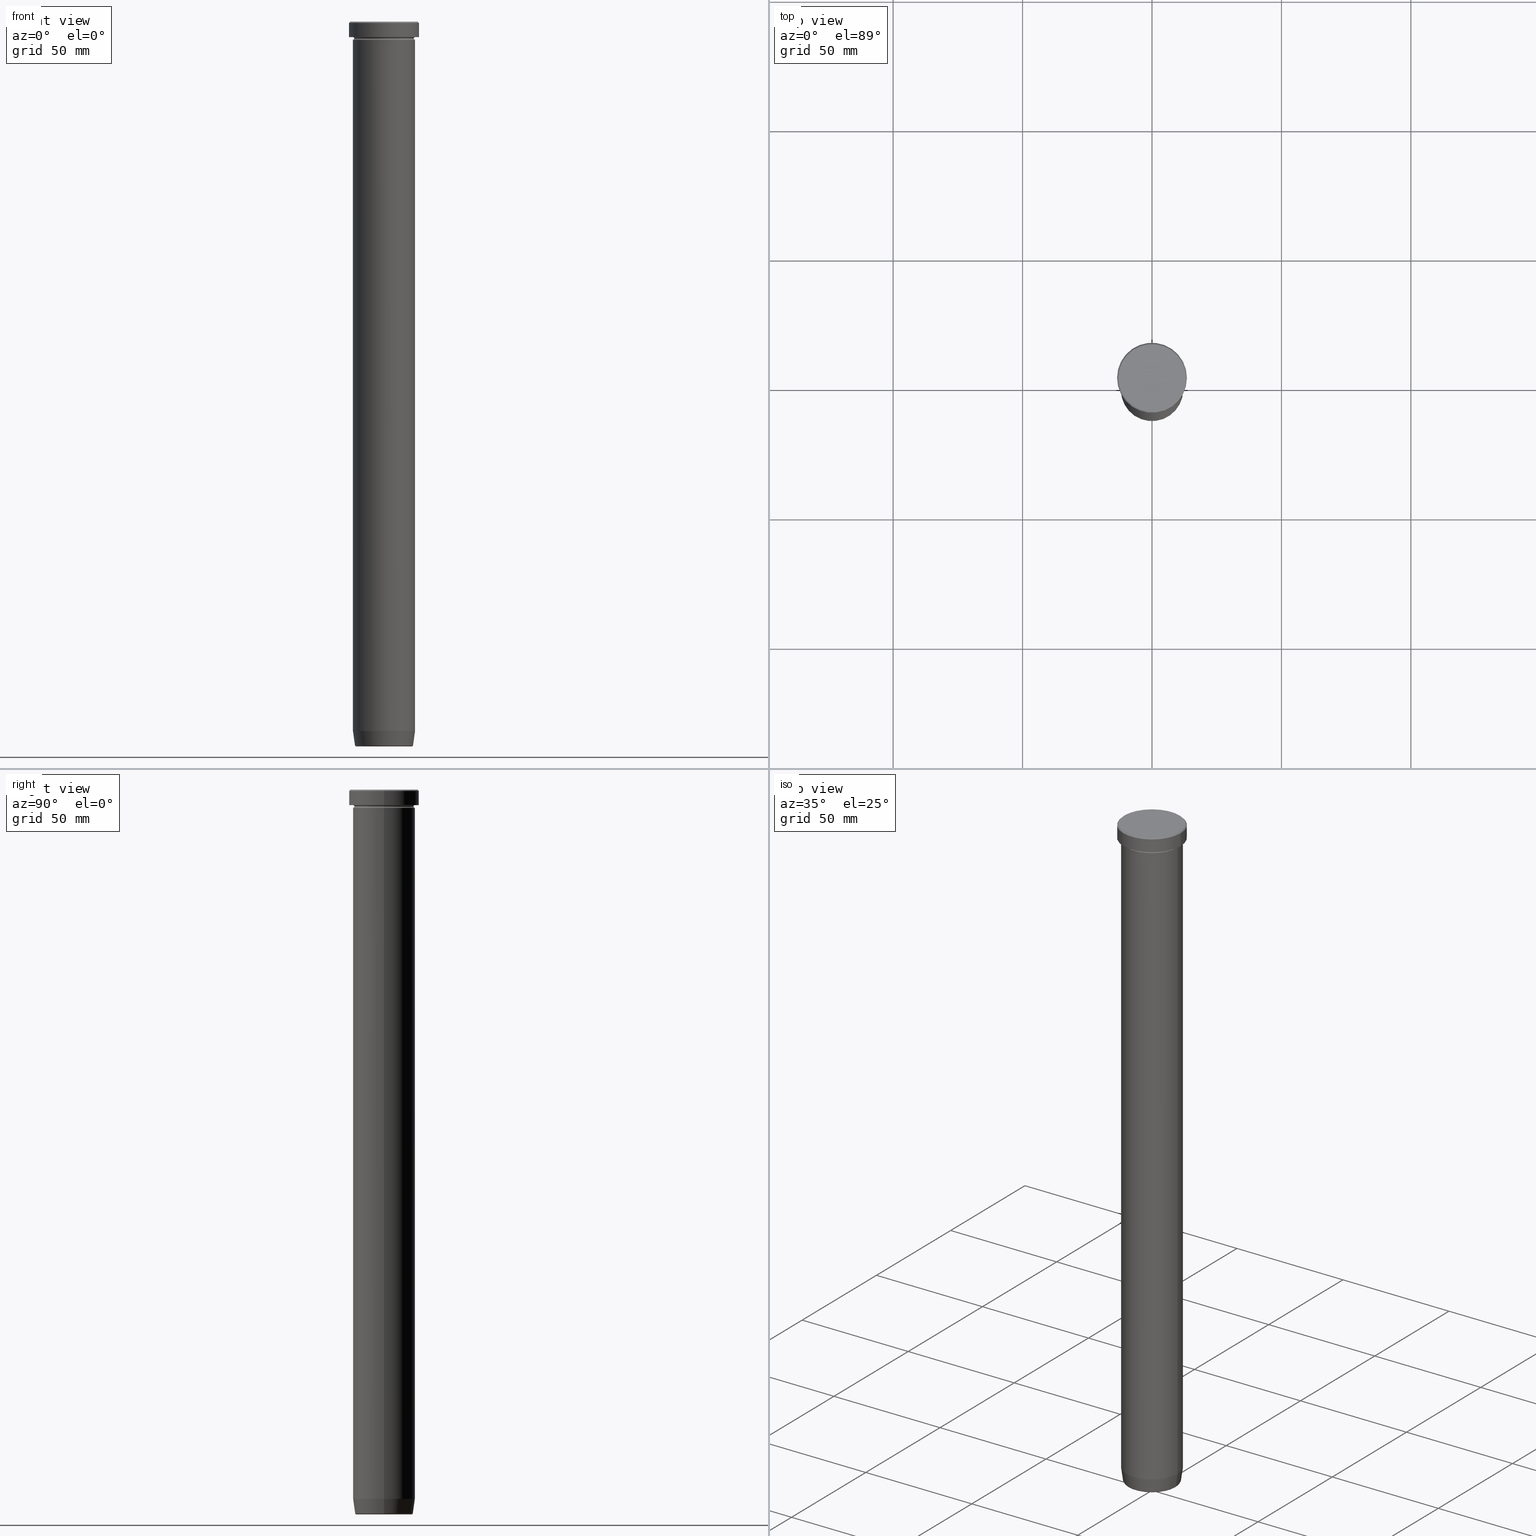
[diagram: canonical four-view strip — front | top / right | iso, engineering-drawing reading convention]
A machine part, canonical four-view strip (front | top / right | iso — engineering-drawing reading convention). The complete STEP part file that produces these views, byte-faithful:
ISO-10303-21;
HEADER;
FILE_DESCRIPTION (( 'STEP AP203' ),
    '1' );
FILE_NAME ('9771.STEP',
    '2024-01-02T17:51:23',
    ( '' ),
    ( '' ),
    'SwSTEP 2.0',
    'SolidWorks 2019',
    '' );
FILE_SCHEMA (( 'CONFIG_CONTROL_DESIGN' ));
ENDSEC;

DATA;
#1 = DIRECTION ( 'NONE',  ( -0.000000000000000000, -0.000000000000000000, 1.000000000000000000 ) ) ;
#2 = CIRCLE ( 'NONE', #321, 12.00000000000000000 ) ;
#3 = DIRECTION ( 'NONE',  ( -0.000000000000000000, -0.000000000000000000, 1.000000000000000000 ) ) ;
#4 = AXIS2_PLACEMENT_3D ( 'NONE', #432, #14, #202 ) ;
#5 = EDGE_CURVE ( 'NONE', #509, #226, #549, .T. ) ;
#6 = EDGE_LOOP ( 'NONE', ( #351, #67, #415, #108 ) ) ;
#7 = ORIENTED_EDGE ( 'NONE', *, *, #90, .T. ) ;
#8 = LINE ( 'NONE', #242, #583 ) ;
#9 = EDGE_LOOP ( 'NONE', ( #492, #214, #599, #481 ) ) ;
#10 = CARTESIAN_POINT ( 'NONE',  ( 0.000000000000000000, 0.000000000000000000, -280.0000000000000000 ) ) ;
#11 = EDGE_CURVE ( 'NONE', #151, #425, #116, .T. ) ;
#12 = ORIENTED_EDGE ( 'NONE', *, *, #198, .T. ) ;
#13 = EDGE_LOOP ( 'NONE', ( #93, #196, #491, #104 ) ) ;
#14 = DIRECTION ( 'NONE',  ( -0.000000000000000000, -0.000000000000000000, 1.000000000000000000 ) ) ;
#15 = VECTOR ( 'NONE', #396, 1000.000000000000000 ) ;
#16 = CONICAL_SURFACE ( 'NONE', #70, 12.99999999999999645, 0.7853981633974431720 ) ;
#17 = LINE ( 'NONE', #204, #136 ) ;
#18 = FACE_OUTER_BOUND ( 'NONE', #264, .T. ) ;
#19 = APPROVAL_ROLE ( '' ) ;
#20 = CARTESIAN_POINT ( 'NONE',  ( 10.72211162287753083, 0.000000000000000000, -279.5000000000000000 ) ) ;
#21 = TOROIDAL_SURFACE ( 'NONE', #364, 12.00000000000000000, 0.5000000000000000000 ) ;
#22 = ORIENTED_EDGE ( 'NONE', *, *, #274, .F. ) ;
#23 = EDGE_LOOP ( 'NONE', ( #446, #303 ) ) ;
#24 = CARTESIAN_POINT ( 'NONE',  ( 12.00000000000000000, 0.000000000000000000, 0.000000000000000000 ) ) ;
#25 = EDGE_LOOP ( 'NONE', ( #547, #443, #522, #500 ) ) ;
#26 = EDGE_LOOP ( 'NONE', ( #427, #419, #137, #22 ) ) ;
#27 = ADVANCED_FACE ( 'NONE', ( #428 ), #515, .T. ) ;
#28 = COORDINATED_UNIVERSAL_TIME_OFFSET ( 1, 0, .AHEAD. ) ;
#29 = EDGE_LOOP ( 'NONE', ( #346, #571, #7, #289 ) ) ;
#30 = CIRCLE ( 'NONE', #356, 0.5000000000000004441 ) ;
#31 = VECTOR ( 'NONE', #158, 1000.000000000000000 ) ;
#32 = APPROVAL ( #256, 'NEUR�EN�' ) ;
#33 = DIRECTION ( 'NONE',  ( -0.000000000000000000, -0.000000000000000000, 1.000000000000000000 ) ) ;
#34 = DIRECTION ( 'NONE',  ( -1.000000000000000000, 1.224646799147353454E-16, 0.000000000000000000 ) ) ;
#35 = CARTESIAN_POINT ( 'NONE',  ( 0.000000000000000000, 13.50000000000000000, -6.000000000000000000 ) ) ;
#36 = PLANE ( 'NONE',  #394 ) ;
#37 = CARTESIAN_POINT ( 'NONE',  ( -10.72211162287753083, 1.313079967905760108E-15, -279.5000000000000000 ) ) ;
#38 = AXIS2_PLACEMENT_3D ( 'NONE', #43, #132, #84 ) ;
#39 = DIRECTION ( 'NONE',  ( 0.000000000000000000, 0.000000000000000000, -1.000000000000000000 ) ) ;
#40 = CARTESIAN_POINT ( 'NONE',  ( 12.00000000000000000, 0.000000000000000000, -6.500000000000000888 ) ) ;
#41 = ORIENTED_EDGE ( 'NONE', *, *, #164, .T. ) ;
#42 = FACE_BOUND ( 'NONE', #474, .T. ) ;
#43 = CARTESIAN_POINT ( 'NONE',  ( 0.000000000000000000, 0.000000000000000000, 0.000000000000000000 ) ) ;
#44 = ADVANCED_FACE ( 'NONE', ( #472 ), #181, .F. ) ;
#45 = DIRECTION ( 'NONE',  ( -0.000000000000000000, -0.000000000000000000, 1.000000000000000000 ) ) ;
#46 = ORIENTED_EDGE ( 'NONE', *, *, #461, .T. ) ;
#47 = CC_DESIGN_PERSON_AND_ORGANIZATION_ASSIGNMENT ( #398, #450, ( #78 ) ) ;
#48 = AXIS2_PLACEMENT_3D ( 'NONE', #458, #368, #558 ) ;
#49 = ORIENTED_EDGE ( 'NONE', *, *, #585, .F. ) ;
#50 = DIRECTION ( 'NONE',  ( 0.000000000000000000, 0.000000000000000000, -1.000000000000000000 ) ) ;
#51 = CC_DESIGN_SECURITY_CLASSIFICATION ( #78, ( #129 ) ) ;
#52 = ORIENTED_EDGE ( 'NONE', *, *, #11, .F. ) ;
#53 = DIRECTION ( 'NONE',  ( -0.000000000000000000, -0.000000000000000000, 1.000000000000000000 ) ) ;
#54 = CARTESIAN_POINT ( 'NONE',  ( 0.000000000000000000, 0.000000000000000000, -27.00000000000000000 ) ) ;
#55 = EDGE_CURVE ( 'NONE', #379, #306, #336, .T. ) ;
#56 = ORIENTED_EDGE ( 'NONE', *, *, #11, .T. ) ;
#57 = DIRECTION ( 'NONE',  ( -0.000000000000000000, -0.000000000000000000, 1.000000000000000000 ) ) ;
#58 = DIRECTION ( 'NONE',  ( 0.7071067811865439090, 8.659560562354888485E-17, -0.7071067811865512365 ) ) ;
#59 = CARTESIAN_POINT ( 'NONE',  ( -12.00000000000000000, 1.469576158976823947E-15, 0.000000000000000000 ) ) ;
#60 = AXIS2_PLACEMENT_3D ( 'NONE', #360, #407, #271 ) ;
#61 = CARTESIAN_POINT ( 'NONE',  ( 13.50000000000000000, 0.000000000000000000, 0.000000000000000000 ) ) ;
#62 = CONICAL_SURFACE ( 'NONE', #118, 11.15675499178564678, 0.1396263401595471132 ) ;
#63 = APPROVAL_ROLE ( '' ) ;
#64 = VERTEX_POINT ( 'NONE', #568 ) ;
#65 = VERTEX_POINT ( 'NONE', #190 ) ;
#66 = EDGE_CURVE ( 'NONE', #124, #71, #278, .T. ) ;
#67 = ORIENTED_EDGE ( 'NONE', *, *, #392, .T. ) ;
#68 = DIRECTION ( 'NONE',  ( -0.000000000000000000, -0.000000000000000000, 1.000000000000000000 ) ) ;
#69 = AXIS2_PLACEMENT_3D ( 'NONE', #405, #177, #361 ) ;
#70 = AXIS2_PLACEMENT_3D ( 'NONE', #429, #563, #334 ) ;
#71 = VERTEX_POINT ( 'NONE', #556 ) ;
#72 = ADVANCED_FACE ( 'NONE', ( #193 ), #87, .F. ) ;
#73 = SECURITY_CLASSIFICATION_LEVEL ( 'unclassified' ) ;
#74 = ORIENTED_EDGE ( 'NONE', *, *, #134, .T. ) ;
#75 = CARTESIAN_POINT ( 'NONE',  ( 13.50000000000000000, 0.000000000000000000, -0.5000000000000091038 ) ) ;
#76 = CIRCLE ( 'NONE', #422, 12.00000000000000000 ) ;
#77 = ORIENTED_EDGE ( 'NONE', *, *, #357, .T. ) ;
#78 = SECURITY_CLASSIFICATION ( '', '', #73 ) ;
#79 = CARTESIAN_POINT ( 'NONE',  ( -12.99999999999999645, 0.000000000000000000, 0.000000000000000000 ) ) ;
#80 = DIRECTION ( 'NONE',  ( -1.000000000000000000, 1.224646799147353454E-16, 0.000000000000000000 ) ) ;
#81 = EDGE_CURVE ( 'NONE', #110, #305, #182, .T. ) ;
#82 = CARTESIAN_POINT ( 'NONE',  ( 0.000000000000000000, 0.000000000000000000, -0.5000000000000091038 ) ) ;
#83 = DIRECTION ( 'NONE',  ( 1.000000000000000000, 0.000000000000000000, 0.000000000000000000 ) ) ;
#84 = DIRECTION ( 'NONE',  ( 1.000000000000000000, 0.000000000000000000, 0.000000000000000000 ) ) ;
#85 = FACE_OUTER_BOUND ( 'NONE', #293, .T. ) ;
#86 = CC_DESIGN_PERSON_AND_ORGANIZATION_ASSIGNMENT ( #212, #577, ( #406 ) ) ;
#87 = TOROIDAL_SURFACE ( 'NONE', #434, 12.00000000000000000, 0.5000000000000000000 ) ;
#88 = AXIS2_PLACEMENT_3D ( 'NONE', #185, #554, #453 ) ;
#89 = FACE_OUTER_BOUND ( 'NONE', #277, .T. ) ;
#90 = EDGE_CURVE ( 'NONE', #124, #379, #521, .T. ) ;
#91 = ORIENTED_EDGE ( 'NONE', *, *, #546, .T. ) ;
#92 = PLANE ( 'NONE',  #280 ) ;
#93 = ORIENTED_EDGE ( 'NONE', *, *, #66, .T. ) ;
#94 = DIRECTION ( 'NONE',  ( -1.000000000000000000, 0.000000000000000000, -0.000000000000000000 ) ) ;
#95 = ORIENTED_EDGE ( 'NONE', *, *, #523, .T. ) ;
#96 = AXIS2_PLACEMENT_3D ( 'NONE', #246, #244, #465 ) ;
#97 = ORIENTED_EDGE ( 'NONE', *, *, #260, .T. ) ;
#98 = AXIS2_PLACEMENT_3D ( 'NONE', #497, #174, #122 ) ;
#99 = DIRECTION ( 'NONE',  ( 1.000000000000000000, 0.000000000000000000, 0.000000000000000000 ) ) ;
#100 = DIRECTION ( 'NONE',  ( -0.000000000000000000, -0.000000000000000000, 1.000000000000000000 ) ) ;
#101 = FACE_OUTER_BOUND ( 'NONE', #25, .T. ) ;
#102 = ADVANCED_FACE ( 'NONE', ( #258 ), #170, .T. ) ;
#103 = DIRECTION ( 'NONE',  ( -1.000000000000000000, 0.000000000000000000, -0.000000000000000000 ) ) ;
#104 = ORIENTED_EDGE ( 'NONE', *, *, #90, .F. ) ;
#105 = DATE_AND_TIME ( #584, #566 ) ;
#106 = TOROIDAL_SURFACE ( 'NONE', #452, 12.00000000000000000, 0.5000000000000000000 ) ;
#107 = EDGE_CURVE ( 'NONE', #471, #266, #401, .T. ) ;
#108 = ORIENTED_EDGE ( 'NONE', *, *, #5, .F. ) ;
#109 = ORIENTED_EDGE ( 'NONE', *, *, #222, .F. ) ;
#110 = VERTEX_POINT ( 'NONE', #313 ) ;
#111 = COORDINATED_UNIVERSAL_TIME_OFFSET ( 1, 0, .AHEAD. ) ;
#112 = CARTESIAN_POINT ( 'NONE',  ( -12.00000000000000000, 0.000000000000000000, -6.000000000000000000 ) ) ;
#113 = ORIENTED_EDGE ( 'NONE', *, *, #217, .T. ) ;
#114 = APPROVAL_DATE_TIME ( #353, #318 ) ;
#115 = EDGE_CURVE ( 'NONE', #471, #253, #373, .T. ) ;
#116 = CIRCLE ( 'NONE', #96, 12.00000000000000000 ) ;
#117 = AXIS2_PLACEMENT_3D ( 'NONE', #463, #587, #140 ) ;
#118 = AXIS2_PLACEMENT_3D ( 'NONE', #10, #514, #335 ) ;
#119 = COORDINATED_UNIVERSAL_TIME_OFFSET ( 1, 0, .AHEAD. ) ;
#120 = ORIENTED_EDGE ( 'NONE', *, *, #366, .F. ) ;
#121 = ORIENTED_EDGE ( 'NONE', *, *, #523, .F. ) ;
#122 = DIRECTION ( 'NONE',  ( -1.000000000000000000, -1.224646799147353454E-16, 0.000000000000000000 ) ) ;
#123 = DIRECTION ( 'NONE',  ( -0.000000000000000000, -0.000000000000000000, 1.000000000000000000 ) ) ;
#124 = VERTEX_POINT ( 'NONE', #488 ) ;
#125 = DIRECTION ( 'NONE',  ( 0.000000000000000000, 0.000000000000000000, -1.000000000000000000 ) ) ;
#126 = CLOSED_SHELL ( 'NONE', ( #102, #545, #372, #502, #248, #494, #397, #27 ) ) ;
#127 = CARTESIAN_POINT ( 'NONE',  ( 11.50000000000000000, 0.000000000000000000, -6.500000000000000888 ) ) ;
#128 = CIRCLE ( 'NONE', #88, 10.72211162287753083 ) ;
#129 = PRODUCT_DEFINITION_FORMATION_WITH_SPECIFIED_SOURCE ( 'LIBOVOLN�', '', #406, .NOT_KNOWN. ) ;
#130 = DIRECTION ( 'NONE',  ( 1.224646799147353207E-16, 1.000000000000000000, 0.000000000000000000 ) ) ;
#131 = CARTESIAN_POINT ( 'NONE',  ( 12.00000000000000000, 0.000000000000000000, -7.000000000000000000 ) ) ;
#132 = DIRECTION ( 'NONE',  ( -0.000000000000000000, -0.000000000000000000, 1.000000000000000000 ) ) ;
#133 = DIRECTION ( 'NONE',  ( -1.000000000000000000, 0.000000000000000000, 0.000000000000000000 ) ) ;
#134 = EDGE_CURVE ( 'NONE', #64, #146, #220, .T. ) ;
#135 = CARTESIAN_POINT ( 'NONE',  ( 0.000000000000000000, 0.000000000000000000, -7.000000000000000000 ) ) ;
#136 = VECTOR ( 'NONE', #267, 1000.000000000000000 ) ;
#137 = ORIENTED_EDGE ( 'NONE', *, *, #164, .F. ) ;
#138 = CIRCLE ( 'NONE', #299, 12.00000000000000000 ) ;
#139 = CARTESIAN_POINT ( 'NONE',  ( 0.000000000000000000, 0.000000000000000000, -6.500000000000000888 ) ) ;
#140 = DIRECTION ( 'NONE',  ( 1.000000000000000000, 0.000000000000000000, 0.000000000000000000 ) ) ;
#141 = DIRECTION ( 'NONE',  ( -1.000000000000000000, 0.000000000000000000, 0.000000000000000000 ) ) ;
#142 = DIRECTION ( 'NONE',  ( 1.000000000000000000, 0.000000000000000000, 0.000000000000000000 ) ) ;
#143 = DIRECTION ( 'NONE',  ( 0.000000000000000000, 0.000000000000000000, -1.000000000000000000 ) ) ;
#144 = ORIENTED_EDGE ( 'NONE', *, *, #134, .F. ) ;
#145 = FACE_OUTER_BOUND ( 'NONE', #331, .T. ) ;
#146 = VERTEX_POINT ( 'NONE', #594 ) ;
#147 = EDGE_CURVE ( 'NONE', #479, #509, #17, .T. ) ;
#148 = AXIS2_PLACEMENT_3D ( 'NONE', #37, #229, #34 ) ;
#149 = CARTESIAN_POINT ( 'NONE',  ( 12.99999999999999645, 1.592040838891558701E-15, 0.000000000000000000 ) ) ;
#150 = ORIENTED_EDGE ( 'NONE', *, *, #308, .F. ) ;
#151 = VERTEX_POINT ( 'NONE', #112 ) ;
#152 = DIRECTION ( 'NONE',  ( 1.000000000000000000, 0.000000000000000000, 0.000000000000000000 ) ) ;
#153 = DIRECTION ( 'NONE',  ( -0.000000000000000000, -0.000000000000000000, 1.000000000000000000 ) ) ;
#154 = DESIGN_CONTEXT ( 'detailed design', #378, 'design' ) ;
#155 = DIRECTION ( 'NONE',  ( -0.000000000000000000, -0.000000000000000000, 1.000000000000000000 ) ) ;
#156 = CARTESIAN_POINT ( 'NONE',  ( -11.21724565724832345, 1.421646278958347648E-15, -279.5695865504800395 ) ) ;
#157 = EDGE_CURVE ( 'NONE', #65, #479, #476, .T. ) ;
#158 = DIRECTION ( 'NONE',  ( -0.000000000000000000, -0.000000000000000000, 1.000000000000000000 ) ) ;
#159 = CIRCLE ( 'NONE', #441, 0.5000000000000004441 ) ;
#160 = VECTOR ( 'NONE', #58, 1000.000000000000000 ) ;
#161 = CC_DESIGN_PERSON_AND_ORGANIZATION_ASSIGNMENT ( #447, #265, ( #129 ) ) ;
#162 = CARTESIAN_POINT ( 'NONE',  ( 0.000000000000000000, 0.000000000000000000, 0.000000000000000000 ) ) ;
#163 = ORIENTED_EDGE ( 'NONE', *, *, #408, .T. ) ;
#164 = EDGE_CURVE ( 'NONE', #506, #469, #590, .T. ) ;
#165 = ORIENTED_EDGE ( 'NONE', *, *, #157, .F. ) ;
#166 = COORDINATED_UNIVERSAL_TIME_OFFSET ( 1, 0, .AHEAD. ) ;
#167 = DIRECTION ( 'NONE',  ( -1.000000000000000000, 0.000000000000000000, 0.000000000000000000 ) ) ;
#168 = DIRECTION ( 'NONE',  ( 1.000000000000000000, 0.000000000000000000, 0.000000000000000000 ) ) ;
#169 = DIRECTION ( 'NONE',  ( 0.000000000000000000, 0.000000000000000000, 1.000000000000000000 ) ) ;
#170 = TOROIDAL_SURFACE ( 'NONE', #69, 10.72211162287753083, 0.5000000000000000000 ) ;
#171 = DIRECTION ( 'NONE',  ( 1.000000000000000000, 0.000000000000000000, 0.000000000000000000 ) ) ;
#172 = DIRECTION ( 'NONE',  ( 1.000000000000000000, 0.000000000000000000, 0.000000000000000000 ) ) ;
#173 = ORIENTED_EDGE ( 'NONE', *, *, #198, .F. ) ;
#174 = DIRECTION ( 'NONE',  ( -1.224646799147353207E-16, 1.000000000000000000, 0.000000000000000000 ) ) ;
#175 = APPROVAL_DATE_TIME ( #403, #596 ) ;
#176 = DIRECTION ( 'NONE',  ( -1.000000000000000000, 0.000000000000000000, 0.000000000000000000 ) ) ;
#177 = DIRECTION ( 'NONE',  ( -0.000000000000000000, -0.000000000000000000, 1.000000000000000000 ) ) ;
#178 = EDGE_CURVE ( 'NONE', #266, #359, #288, .T. ) ;
#179 = DIRECTION ( 'NONE',  ( 1.000000000000000000, 0.000000000000000000, 0.000000000000000000 ) ) ;
#180 = FACE_OUTER_BOUND ( 'NONE', #532, .T. ) ;
#181 = TOROIDAL_SURFACE ( 'NONE', #589, 12.00000000000000000, 0.5000000000000000000 ) ;
#182 = CIRCLE ( 'NONE', #410, 12.00000000000000000 ) ;
#183 = CARTESIAN_POINT ( 'NONE',  ( -12.00000000000000000, 1.469576158976823947E-15, -6.500000000000000888 ) ) ;
#184 = ORGANIZATION ( 'NEUR�EN�', 'NEUR�EN�', '' ) ;
#185 = CARTESIAN_POINT ( 'NONE',  ( 0.000000000000000000, 0.000000000000000000, -280.0000000000000000 ) ) ;
#186 = LINE ( 'NONE', #530, #15 ) ;
#187 = EDGE_CURVE ( 'NONE', #281, #469, #201, .T. ) ;
#188 = DIRECTION ( 'NONE',  ( -1.000000000000000000, 0.000000000000000000, 0.000000000000000000 ) ) ;
#189 = CARTESIAN_POINT ( 'NONE',  ( 0.000000000000000000, 0.000000000000000000, -6.500000000000000888 ) ) ;
#190 = CARTESIAN_POINT ( 'NONE',  ( 12.00000000000000000, 0.000000000000000000, -274.0000000000000000 ) ) ;
#191 = DIRECTION ( 'NONE',  ( -0.000000000000000000, -0.000000000000000000, 1.000000000000000000 ) ) ;
#192 = AXIS2_PLACEMENT_3D ( 'NONE', #349, #533, #499 ) ;
#193 = FACE_OUTER_BOUND ( 'NONE', #527, .T. ) ;
#194 = CARTESIAN_POINT ( 'NONE',  ( 0.000000000000000000, 0.000000000000000000, 0.000000000000000000 ) ) ;
#195 = ORIENTED_EDGE ( 'NONE', *, *, #348, .T. ) ;
#196 = ORIENTED_EDGE ( 'NONE', *, *, #438, .T. ) ;
#197 = CARTESIAN_POINT ( 'NONE',  ( 0.000000000000000000, 0.000000000000000000, 0.000000000000000000 ) ) ;
#198 = EDGE_CURVE ( 'NONE', #253, #471, #328, .T. ) ;
#199 = ORIENTED_EDGE ( 'NONE', *, *, #285, .F. ) ;
#200 = CARTESIAN_POINT ( 'NONE',  ( 12.00000000000000000, 0.000000000000000000, 0.000000000000000000 ) ) ;
#201 = CIRCLE ( 'NONE', #148, 0.5000000000000004441 ) ;
#202 = DIRECTION ( 'NONE',  ( 1.000000000000000000, 0.000000000000000000, 0.000000000000000000 ) ) ;
#203 = AXIS2_PLACEMENT_3D ( 'NONE', #197, #562, #99 ) ;
#204 = CARTESIAN_POINT ( 'NONE',  ( -12.00000000000000000, 1.469576158976823947E-15, 0.000000000000000000 ) ) ;
#205 = EDGE_LOOP ( 'NONE', ( #113, #74 ) ) ;
#206 = LINE ( 'NONE', #200, #232 ) ;
#207 = ADVANCED_FACE ( 'NONE', ( #574 ), #21, .F. ) ;
#208 = ORIENTED_EDGE ( 'NONE', *, *, #348, .F. ) ;
#209 = DIRECTION ( 'NONE',  ( 0.000000000000000000, -1.000000000000000000, 0.000000000000000000 ) ) ;
#210 = ORIENTED_EDGE ( 'NONE', *, *, #5, .T. ) ;
#211 = ORIENTED_EDGE ( 'NONE', *, *, #222, .T. ) ;
#212 = PERSON_AND_ORGANIZATION ( #317, #184 ) ;
#213 = AXIS2_PLACEMENT_3D ( 'NONE', #183, #130, #80 ) ;
#214 = ORIENTED_EDGE ( 'NONE', *, *, #107, .T. ) ;
#215 = ORIENTED_EDGE ( 'NONE', *, *, #316, .T. ) ;
#216 =( LENGTH_UNIT ( ) NAMED_UNIT ( * ) SI_UNIT ( .MILLI., .METRE. ) );
#217 = EDGE_CURVE ( 'NONE', #146, #64, #495, .T. ) ;
#218 = DATE_AND_TIME ( #578, #402 ) ;
#219 =( NAMED_UNIT ( * ) PLANE_ANGLE_UNIT ( ) SI_UNIT ( $, .RADIAN. ) );
#220 = CIRCLE ( 'NONE', #38, 12.99999999999999645 ) ;
#221 = APPROVAL_PERSON_ORGANIZATION ( #573, #318, #63 ) ;
#222 = EDGE_CURVE ( 'NONE', #425, #151, #2, .T. ) ;
#223 = CARTESIAN_POINT ( 'NONE',  ( 12.00000000000000000, 1.469576158976823947E-15, -6.000000000000000000 ) ) ;
#224 = CARTESIAN_POINT ( 'NONE',  ( 0.000000000000000000, 0.000000000000000000, -6.500000000000000888 ) ) ;
#225 = PLANE ( 'NONE',  #60 ) ;
#226 = VERTEX_POINT ( 'NONE', #295 ) ;
#227 = CARTESIAN_POINT ( 'NONE',  ( 0.000000000000000000, 2.449293598294706434E-14, -280.0000000000000000 ) ) ;
#228 = ORIENTED_EDGE ( 'NONE', *, *, #416, .T. ) ;
#229 = DIRECTION ( 'NONE',  ( 1.224646799147353207E-16, 1.000000000000000000, 0.000000000000000000 ) ) ;
#230 = AXIS2_PLACEMENT_3D ( 'NONE', #399, #576, #179 ) ;
#231 = EDGE_CURVE ( 'NONE', #110, #266, #529, .T. ) ;
#232 = VECTOR ( 'NONE', #45, 1000.000000000000000 ) ;
#233 = DIRECTION ( 'NONE',  ( 1.000000000000000000, 0.000000000000000000, 0.000000000000000000 ) ) ;
#234 = ORIENTED_EDGE ( 'NONE', *, *, #81, .T. ) ;
#235 = ADVANCED_BREP_SHAPE_REPRESENTATION ( '9771', ( #330, #531, #365 ), #411 ) ;
#236 = CARTESIAN_POINT ( 'NONE',  ( 0.000000000000000000, 0.000000000000000000, 0.000000000000000000 ) ) ;
#237 = ORIENTED_EDGE ( 'NONE', *, *, #392, .F. ) ;
#238 = CARTESIAN_POINT ( 'NONE',  ( 0.000000000000000000, 0.000000000000000000, -27.00000000000000000 ) ) ;
#239 = FACE_OUTER_BOUND ( 'NONE', #13, .T. ) ;
#240 = AXIS2_PLACEMENT_3D ( 'NONE', #82, #39, #320 ) ;
#241 = ORIENTED_EDGE ( 'NONE', *, *, #55, .F. ) ;
#242 = CARTESIAN_POINT ( 'NONE',  ( -11.15675499178564678, 1.366308428956154791E-15, -280.0000000000000000 ) ) ;
#243 = EDGE_CURVE ( 'NONE', #253, #359, #30, .T. ) ;
#244 = DIRECTION ( 'NONE',  ( -0.000000000000000000, -0.000000000000000000, 1.000000000000000000 ) ) ;
#245 = FACE_OUTER_BOUND ( 'NONE', #325, .T. ) ;
#246 = CARTESIAN_POINT ( 'NONE',  ( 0.000000000000000000, 0.000000000000000000, -6.000000000000000000 ) ) ;
#247 = CARTESIAN_POINT ( 'NONE',  ( 0.000000000000000000, 12.00000000000000000, -27.00000000000000000 ) ) ;
#248 = ADVANCED_FACE ( 'NONE', ( #395 ), #544, .T. ) ;
#249 = VECTOR ( 'NONE', #327, 1000.000000000000000 ) ;
#250 = PLANE ( 'NONE',  #551 ) ;
#251 = DATE_TIME_ROLE ( 'classification_date' ) ;
#252 = CARTESIAN_POINT ( 'NONE',  ( -12.00000000000000000, 1.469576158976823947E-15, -7.000000000000000000 ) ) ;
#253 = VERTEX_POINT ( 'NONE', #127 ) ;
#254 = MECHANICAL_CONTEXT ( 'NONE', #367, 'mechanical' ) ;
#255 = ORIENTED_EDGE ( 'NONE', *, *, #107, .F. ) ;
#256 = APPROVAL_STATUS ( 'not_yet_approved' ) ;
#257 = CIRCLE ( 'NONE', #565, 0.5000000000000004441 ) ;
#258 = FACE_OUTER_BOUND ( 'NONE', #26, .T. ) ;
#259 = APPROVAL_PERSON_ORGANIZATION ( #300, #596, #19 ) ;
#260 = EDGE_CURVE ( 'NONE', #506, #65, #186, .T. ) ;
#261 = ORIENTED_EDGE ( 'NONE', *, *, #147, .T. ) ;
#262 = APPLICATION_PROTOCOL_DEFINITION ( 'international standard', 'config_control_design', 1994, #378 ) ;
#263 = CARTESIAN_POINT ( 'NONE',  ( 0.000000000000000000, 0.000000000000000000, -274.0000000000000000 ) ) ;
#264 = EDGE_LOOP ( 'NONE', ( #41, #46, #165, #564 ) ) ;
#265 = PERSON_AND_ORGANIZATION_ROLE ( 'design_supplier' ) ;
#266 = VERTEX_POINT ( 'NONE', #252 ) ;
#267 = DIRECTION ( 'NONE',  ( -0.000000000000000000, -0.000000000000000000, 1.000000000000000000 ) ) ;
#268 = FACE_OUTER_BOUND ( 'NONE', #275, .T. ) ;
#269 = AXIS2_PLACEMENT_3D ( 'NONE', #592, #543, #389 ) ;
#270 = CC_DESIGN_APPROVAL ( #318, ( #129 ) ) ;
#271 = DIRECTION ( 'NONE',  ( 1.000000000000000000, 0.000000000000000000, 0.000000000000000000 ) ) ;
#272 = DIRECTION ( 'NONE',  ( -0.000000000000000000, -0.000000000000000000, 1.000000000000000000 ) ) ;
#273 = CYLINDRICAL_SURFACE ( 'NONE', #575, 12.00000000000000000 ) ;
#274 = EDGE_CURVE ( 'NONE', #380, #506, #257, .T. ) ;
#275 = EDGE_LOOP ( 'NONE', ( #163, #347 ) ) ;
#276 = CARTESIAN_POINT ( 'NONE',  ( -13.50000000000000000, 1.653273178848926867E-15, -0.5000000000000091038 ) ) ;
#277 = EDGE_LOOP ( 'NONE', ( #121, #449, #387, #241 ) ) ;
#278 = CIRCLE ( 'NONE', #355, 13.50000000000000000 ) ;
#279 = CIRCLE ( 'NONE', #48, 12.00000000000000000 ) ;
#280 = AXIS2_PLACEMENT_3D ( 'NONE', #54, #50, #103 ) ;
#281 = VERTEX_POINT ( 'NONE', #454 ) ;
#282 = FACE_OUTER_BOUND ( 'NONE', #205, .T. ) ;
#283 = CC_DESIGN_DATE_AND_TIME_ASSIGNMENT ( #105, #251, ( #78 ) ) ;
#284 = LINE ( 'NONE', #149, #160 ) ;
#285 = EDGE_CURVE ( 'NONE', #253, #425, #486, .T. ) ;
#286 = CARTESIAN_POINT ( 'NONE',  ( 0.000000000000000000, 0.000000000000000000, -27.00000000000000000 ) ) ;
#287 = CARTESIAN_POINT ( 'NONE',  ( 0.000000000000000000, 0.000000000000000000, 0.000000000000000000 ) ) ;
#288 = CIRCLE ( 'NONE', #337, 12.00000000000000000 ) ;
#289 = ORIENTED_EDGE ( 'NONE', *, *, #55, .T. ) ;
#290 = ORIENTED_EDGE ( 'NONE', *, *, #416, .F. ) ;
#291 = CYLINDRICAL_SURFACE ( 'NONE', #4, 13.50000000000000000 ) ;
#292 = UNCERTAINTY_MEASURE_WITH_UNIT (LENGTH_MEASURE( 1.000000000000000082E-05 ), #216, 'distance_accuracy_value', 'NONE');
#293 = EDGE_LOOP ( 'NONE', ( #512, #485, #52, #338 ) ) ;
#294 = DIRECTION ( 'NONE',  ( 1.000000000000000000, 0.000000000000000000, 0.000000000000000000 ) ) ;
#295 = CARTESIAN_POINT ( 'NONE',  ( 12.00000000000000000, 0.000000000000000000, -27.00000000000000000 ) ) ;
#296 = ADVANCED_FACE ( 'NONE', ( #85 ), #106, .F. ) ;
#297 = FACE_OUTER_BOUND ( 'NONE', #23, .T. ) ;
#298 = VECTOR ( 'NONE', #155, 1000.000000000000000 ) ;
#299 = AXIS2_PLACEMENT_3D ( 'NONE', #572, #340, #152 ) ;
#300 = PERSON_AND_ORGANIZATION ( #317, #184 ) ;
#301 = DIRECTION ( 'NONE',  ( 1.000000000000000000, 0.000000000000000000, 0.000000000000000000 ) ) ;
#302 = EDGE_LOOP ( 'NONE', ( #195, #210 ) ) ;
#303 = ORIENTED_EDGE ( 'NONE', *, *, #81, .F. ) ;
#304 = PERSON_AND_ORGANIZATION ( #317, #184 ) ;
#305 = VERTEX_POINT ( 'NONE', #324 ) ;
#306 = VERTEX_POINT ( 'NONE', #276 ) ;
#307 = ORIENTED_EDGE ( 'NONE', *, *, #157, .T. ) ;
#308 = EDGE_CURVE ( 'NONE', #146, #306, #456, .T. ) ;
#309 = EDGE_LOOP ( 'NONE', ( #255, #173, #445, #215 ) ) ;
#310 = EDGE_CURVE ( 'NONE', #281, #380, #383, .T. ) ;
#311 = AXIS2_PLACEMENT_3D ( 'NONE', #263, #493, #171 ) ;
#312 = AXIS2_PLACEMENT_3D ( 'NONE', #194, #470, #142 ) ;
#313 = CARTESIAN_POINT ( 'NONE',  ( -12.00000000000000000, 1.469576158976823947E-15, -27.00000000000000000 ) ) ;
#314 = DATE_AND_TIME ( #390, #384 ) ;
#315 = DIRECTION ( 'NONE',  ( -0.000000000000000000, -0.000000000000000000, 1.000000000000000000 ) ) ;
#316 = EDGE_CURVE ( 'NONE', #359, #266, #550, .T. ) ;
#317 = PERSON ( 'NEUR�EN�', 'NEUR�EN�', 'NEUR�EN�', ('NEUR�EN�'), ('NEUR�EN�'), ('NEUR�EN�') ) ;
#318 = APPROVAL ( #528, 'NEUR�EN�' ) ;
#319 = CALENDAR_DATE ( 2024, 2, 1 ) ;
#320 = DIRECTION ( 'NONE',  ( 1.000000000000000000, 0.000000000000000000, 0.000000000000000000 ) ) ;
#321 = AXIS2_PLACEMENT_3D ( 'NONE', #541, #315, #167 ) ;
#322 = CARTESIAN_POINT ( 'NONE',  ( 0.000000000000000000, 0.000000000000000000, -280.0000000000000000 ) ) ;
#323 = ADVANCED_FACE ( 'NONE', ( #42, #180 ), #504, .T. ) ;
#324 = CARTESIAN_POINT ( 'NONE',  ( 12.00000000000000000, 0.000000000000000000, -27.00000000000000000 ) ) ;
#325 = EDGE_LOOP ( 'NONE', ( #144, #95, #120, #150 ) ) ;
#326 = PRODUCT_DEFINITION_SHAPE ( 'NONE', 'NONE',  #579 ) ;
#327 = DIRECTION ( 'NONE',  ( -0.7071067811865439090, 0.000000000000000000, -0.7071067811865512365 ) ) ;
#328 = CIRCLE ( 'NONE', #557, 11.50000000000000000 ) ;
#329 = AXIS2_PLACEMENT_3D ( 'NONE', #287, #57, #467 ) ;
#330 = MANIFOLD_SOLID_BREP ( 'Zkosen�1', #393 ) ;
#331 = EDGE_LOOP ( 'NONE', ( #352, #228, #97, #237 ) ) ;
#332 = DIRECTION ( 'NONE',  ( 0.000000000000000000, 0.000000000000000000, -1.000000000000000000 ) ) ;
#333 = ADVANCED_FACE ( 'NONE', ( #89 ), #516, .T. ) ;
#334 = DIRECTION ( 'NONE',  ( -1.000000000000000000, 0.000000000000000000, 0.000000000000000000 ) ) ;
#335 = DIRECTION ( 'NONE',  ( 1.000000000000000000, 0.000000000000000000, 0.000000000000000000 ) ) ;
#336 = CIRCLE ( 'NONE', #539, 13.50000000000000000 ) ;
#337 = AXIS2_PLACEMENT_3D ( 'NONE', #135, #272, #83 ) ;
#338 = ORIENTED_EDGE ( 'NONE', *, *, #357, .F. ) ;
#339 = LOCAL_TIME ( 18, 51, 23.00000000000000000, #413 ) ;
#340 = DIRECTION ( 'NONE',  ( -0.000000000000000000, -0.000000000000000000, 1.000000000000000000 ) ) ;
#341 = ADVANCED_FACE ( 'NONE', ( #282 ), #225, .T. ) ;
#342 = CYLINDRICAL_SURFACE ( 'NONE', #312, 12.00000000000000000 ) ;
#343 = DIRECTION ( 'NONE',  ( 1.000000000000000000, 0.000000000000000000, 0.000000000000000000 ) ) ;
#344 = AXIS2_PLACEMENT_3D ( 'NONE', #496, #125, #133 ) ;
#345 = AXIS2_PLACEMENT_3D ( 'NONE', #414, #595, #188 ) ;
#346 = ORIENTED_EDGE ( 'NONE', *, *, #438, .F. ) ;
#347 = ORIENTED_EDGE ( 'NONE', *, *, #310, .T. ) ;
#348 = EDGE_CURVE ( 'NONE', #226, #509, #76, .T. ) ;
#349 = CARTESIAN_POINT ( 'NONE',  ( 0.000000000000000000, 0.000000000000000000, -279.5695865504800395 ) ) ;
#350 = APPROVAL_ROLE ( '' ) ;
#351 = ORIENTED_EDGE ( 'NONE', *, *, #147, .F. ) ;
#352 = ORIENTED_EDGE ( 'NONE', *, *, #461, .F. ) ;
#353 = DATE_AND_TIME ( #478, #526 ) ;
#354 =( NAMED_UNIT ( * ) SI_UNIT ( $, .STERADIAN. ) SOLID_ANGLE_UNIT ( ) );
#355 = AXIS2_PLACEMENT_3D ( 'NONE', #507, #462, #370 ) ;
#356 = AXIS2_PLACEMENT_3D ( 'NONE', #40, #457, #490 ) ;
#357 = EDGE_CURVE ( 'NONE', #471, #151, #159, .T. ) ;
#358 = EDGE_LOOP ( 'NONE', ( #412, #234, #91, #439 ) ) ;
#359 = VERTEX_POINT ( 'NONE', #131 ) ;
#360 = CARTESIAN_POINT ( 'NONE',  ( 0.000000000000000000, 0.000000000000000000, 0.000000000000000000 ) ) ;
#361 = DIRECTION ( 'NONE',  ( 1.000000000000000000, 0.000000000000000000, 0.000000000000000000 ) ) ;
#362 = AXIS2_PLACEMENT_3D ( 'NONE', #286, #53, #417 ) ;
#363 = CARTESIAN_POINT ( 'NONE',  ( -12.00000000000000000, 0.000000000000000000, -6.500000000000000888 ) ) ;
#364 = AXIS2_PLACEMENT_3D ( 'NONE', #420, #484, #168 ) ;
#365 = AXIS2_PLACEMENT_3D ( 'NONE', #162, #169, #540 ) ;
#366 = EDGE_CURVE ( 'NONE', #306, #379, #460, .T. ) ;
#367 = APPLICATION_CONTEXT ( 'configuration controlled 3d designs of mechanical parts and assemblies' ) ;
#368 = DIRECTION ( 'NONE',  ( -0.000000000000000000, -0.000000000000000000, 1.000000000000000000 ) ) ;
#369 = CARTESIAN_POINT ( 'NONE',  ( 0.000000000000000000, 0.000000000000000000, -5.999999999999999112 ) ) ;
#370 = DIRECTION ( 'NONE',  ( 1.000000000000000000, 0.000000000000000000, 0.000000000000000000 ) ) ;
#371 = CARTESIAN_POINT ( 'NONE',  ( 10.72211162287753083, 0.000000000000000000, -280.0000000000000000 ) ) ;
#372 = ADVANCED_FACE ( 'NONE', ( #548 ), #273, .T. ) ;
#373 = CIRCLE ( 'NONE', #525, 11.50000000000000000 ) ;
#374 = CONICAL_SURFACE ( 'NONE', #477, 11.15675499178564678, 0.1396263401595471132 ) ;
#375 = DIRECTION ( 'NONE',  ( 1.000000000000000000, 0.000000000000000000, 0.000000000000000000 ) ) ;
#376 = FACE_OUTER_BOUND ( 'NONE', #358, .T. ) ;
#377 = CC_DESIGN_PERSON_AND_ORGANIZATION_ASSIGNMENT ( #304, #487, ( #129 ) ) ;
#378 = APPLICATION_CONTEXT ( 'configuration controlled 3d designs of mechanical parts and assemblies' ) ;
#379 = VERTEX_POINT ( 'NONE', #75 ) ;
#380 = VERTEX_POINT ( 'NONE', #371 ) ;
#381 = DIRECTION ( 'NONE',  ( -0.000000000000000000, -0.000000000000000000, 1.000000000000000000 ) ) ;
#382 = CARTESIAN_POINT ( 'NONE',  ( 11.21724565724832345, 0.000000000000000000, -279.5695865504800395 ) ) ;
#383 = CIRCLE ( 'NONE', #503, 10.72211162287753083 ) ;
#384 = LOCAL_TIME ( 18, 51, 23.00000000000000000, #119 ) ;
#385 = DIRECTION ( 'NONE',  ( 1.000000000000000000, 0.000000000000000000, 0.000000000000000000 ) ) ;
#386 = CARTESIAN_POINT ( 'NONE',  ( -13.50000000000000000, 1.653273178848926867E-15, 0.000000000000000000 ) ) ;
#387 = ORIENTED_EDGE ( 'NONE', *, *, #308, .T. ) ;
#388 = FACE_OUTER_BOUND ( 'NONE', #302, .T. ) ;
#389 = DIRECTION ( 'NONE',  ( 1.000000000000000000, 0.000000000000000000, 0.000000000000000000 ) ) ;
#390 = CALENDAR_DATE ( 2024, 2, 1 ) ;
#391 = ORIENTED_EDGE ( 'NONE', *, *, #274, .T. ) ;
#392 = EDGE_CURVE ( 'NONE', #479, #65, #279, .T. ) ;
#393 = CLOSED_SHELL ( 'NONE', ( #513, #296, #207, #561, #553, #538, #341, #570, #323, #448, #44, #72, #333 ) ) ;
#394 = AXIS2_PLACEMENT_3D ( 'NONE', #227, #409, #593 ) ;
#395 = FACE_OUTER_BOUND ( 'NONE', #6, .T. ) ;
#396 = DIRECTION ( 'NONE',  ( 0.1391731009600661872, 0.000000000000000000, 0.9902680687415702510 ) ) ;
#397 = ADVANCED_FACE ( 'NONE', ( #268 ), #36, .F. ) ;
#398 = PERSON_AND_ORGANIZATION ( #317, #184 ) ;
#399 = CARTESIAN_POINT ( 'NONE',  ( 0.000000000000000000, 0.000000000000000000, 0.000000000000000000 ) ) ;
#400 = APPLICATION_PROTOCOL_DEFINITION ( 'international standard', 'config_control_design', 1994, #367 ) ;
#401 = CIRCLE ( 'NONE', #213, 0.5000000000000004441 ) ;
#402 = LOCAL_TIME ( 18, 51, 23.00000000000000000, #111 ) ;
#403 = DATE_AND_TIME ( #319, #339 ) ;
#404 = DIRECTION ( 'NONE',  ( 0.000000000000000000, 0.000000000000000000, -1.000000000000000000 ) ) ;
#405 = CARTESIAN_POINT ( 'NONE',  ( 0.000000000000000000, 0.000000000000000000, -279.5000000000000000 ) ) ;
#406 = PRODUCT ( '9771', '9771', '', ( #254 ) ) ;
#407 = DIRECTION ( 'NONE',  ( 0.000000000000000000, -0.000000000000000000, 1.000000000000000000 ) ) ;
#408 = EDGE_CURVE ( 'NONE', #380, #281, #128, .T. ) ;
#409 = DIRECTION ( 'NONE',  ( 0.000000000000000000, -0.000000000000000000, 1.000000000000000000 ) ) ;
#410 = AXIS2_PLACEMENT_3D ( 'NONE', #238, #153, #343 ) ;
#411 =( GEOMETRIC_REPRESENTATION_CONTEXT ( 3 ) GLOBAL_UNCERTAINTY_ASSIGNED_CONTEXT ( ( #292 ) ) GLOBAL_UNIT_ASSIGNED_CONTEXT ( ( #216, #219, #354 ) ) REPRESENTATION_CONTEXT ( 'NONE', 'WORKASPACE' ) );
#412 = ORIENTED_EDGE ( 'NONE', *, *, #231, .F. ) ;
#413 = COORDINATED_UNIVERSAL_TIME_OFFSET ( 1, 0, .AHEAD. ) ;
#414 = CARTESIAN_POINT ( 'NONE',  ( 0.000000000000000000, 0.000000000000000000, -279.5695865504800395 ) ) ;
#415 = ORIENTED_EDGE ( 'NONE', *, *, #585, .T. ) ;
#416 = EDGE_CURVE ( 'NONE', #469, #506, #435, .T. ) ;
#417 = DIRECTION ( 'NONE',  ( 1.000000000000000000, 0.000000000000000000, 0.000000000000000000 ) ) ;
#418 = DIRECTION ( 'NONE',  ( 0.000000000000000000, 0.000000000000000000, -1.000000000000000000 ) ) ;
#419 = ORIENTED_EDGE ( 'NONE', *, *, #187, .T. ) ;
#420 = CARTESIAN_POINT ( 'NONE',  ( 0.000000000000000000, 0.000000000000000000, -6.500000000000000888 ) ) ;
#421 = DIRECTION ( 'NONE',  ( -0.000000000000000000, -0.000000000000000000, 1.000000000000000000 ) ) ;
#422 = AXIS2_PLACEMENT_3D ( 'NONE', #498, #191, #588 ) ;
#423 = CC_DESIGN_APPROVAL ( #596, ( #78 ) ) ;
#424 = DIRECTION ( 'NONE',  ( 1.000000000000000000, 0.000000000000000000, 0.000000000000000000 ) ) ;
#425 = VERTEX_POINT ( 'NONE', #223 ) ;
#426 = CYLINDRICAL_SURFACE ( 'NONE', #203, 12.00000000000000000 ) ;
#427 = ORIENTED_EDGE ( 'NONE', *, *, #310, .F. ) ;
#428 = FACE_OUTER_BOUND ( 'NONE', #535, .T. ) ;
#429 = CARTESIAN_POINT ( 'NONE',  ( 0.000000000000000000, 0.000000000000000000, 0.000000000000000000 ) ) ;
#430 = EDGE_CURVE ( 'NONE', #71, #124, #505, .T. ) ;
#431 = CARTESIAN_POINT ( 'NONE',  ( 0.000000000000000000, 0.000000000000000000, -0.5000000000000091038 ) ) ;
#432 = CARTESIAN_POINT ( 'NONE',  ( 0.000000000000000000, 0.000000000000000000, 0.000000000000000000 ) ) ;
#433 = CARTESIAN_POINT ( 'NONE',  ( 0.000000000000000000, 0.000000000000000000, -6.500000000000000888 ) ) ;
#434 = AXIS2_PLACEMENT_3D ( 'NONE', #433, #143, #141 ) ;
#435 = CIRCLE ( 'NONE', #345, 11.21724565724832345 ) ;
#436 = CARTESIAN_POINT ( 'NONE',  ( -11.50000000000000000, 1.438959988998139963E-15, -6.500000000000000888 ) ) ;
#437 = APPROVAL_STATUS ( 'not_yet_approved' ) ;
#438 = EDGE_CURVE ( 'NONE', #71, #306, #569, .T. ) ;
#439 = ORIENTED_EDGE ( 'NONE', *, *, #178, .F. ) ;
#440 = AXIS2_PLACEMENT_3D ( 'NONE', #597, #100, #375 ) ;
#441 = AXIS2_PLACEMENT_3D ( 'NONE', #363, #552, #332 ) ;
#442 = PERSON_AND_ORGANIZATION ( #317, #184 ) ;
#443 = ORIENTED_EDGE ( 'NONE', *, *, #231, .T. ) ;
#444 = PRODUCT_RELATED_PRODUCT_CATEGORY ( 'detail', '', ( #406 ) ) ;
#445 = ORIENTED_EDGE ( 'NONE', *, *, #243, .T. ) ;
#446 = ORIENTED_EDGE ( 'NONE', *, *, #455, .F. ) ;
#447 = PERSON_AND_ORGANIZATION ( #317, #184 ) ;
#448 = ADVANCED_FACE ( 'NONE', ( #376 ), #342, .T. ) ;
#449 = ORIENTED_EDGE ( 'NONE', *, *, #217, .F. ) ;
#450 = PERSON_AND_ORGANIZATION_ROLE ( 'classification_officer' ) ;
#451 = SHAPE_DEFINITION_REPRESENTATION ( #326, #235 ) ;
#452 = AXIS2_PLACEMENT_3D ( 'NONE', #555, #404, #176 ) ;
#453 = DIRECTION ( 'NONE',  ( 1.000000000000000000, 0.000000000000000000, 0.000000000000000000 ) ) ;
#454 = CARTESIAN_POINT ( 'NONE',  ( -10.72211162287753083, 1.343398183422815038E-15, -280.0000000000000000 ) ) ;
#455 = EDGE_CURVE ( 'NONE', #305, #110, #138, .T. ) ;
#456 = LINE ( 'NONE', #79, #249 ) ;
#457 = DIRECTION ( 'NONE',  ( 0.000000000000000000, -1.000000000000000000, 0.000000000000000000 ) ) ;
#458 = CARTESIAN_POINT ( 'NONE',  ( 0.000000000000000000, 0.000000000000000000, -274.0000000000000000 ) ) ;
#459 = DIRECTION ( 'NONE',  ( 0.000000000000000000, 0.000000000000000000, -1.000000000000000000 ) ) ;
#460 = CIRCLE ( 'NONE', #240, 13.50000000000000000 ) ;
#461 = EDGE_CURVE ( 'NONE', #469, #479, #8, .T. ) ;
#462 = DIRECTION ( 'NONE',  ( -0.000000000000000000, -0.000000000000000000, 1.000000000000000000 ) ) ;
#463 = CARTESIAN_POINT ( 'NONE',  ( 0.000000000000000000, 0.000000000000000000, -7.000000000000000000 ) ) ;
#464 = ORIENTED_EDGE ( 'NONE', *, *, #408, .F. ) ;
#465 = DIRECTION ( 'NONE',  ( -1.000000000000000000, 0.000000000000000000, 0.000000000000000000 ) ) ;
#466 = DIRECTION ( 'NONE',  ( 0.000000000000000000, 0.000000000000000000, -1.000000000000000000 ) ) ;
#467 = DIRECTION ( 'NONE',  ( 1.000000000000000000, 0.000000000000000000, 0.000000000000000000 ) ) ;
#468 = VECTOR ( 'NONE', #68, 1000.000000000000000 ) ;
#469 = VERTEX_POINT ( 'NONE', #156 ) ;
#470 = DIRECTION ( 'NONE',  ( -0.000000000000000000, -0.000000000000000000, 1.000000000000000000 ) ) ;
#471 = VERTEX_POINT ( 'NONE', #436 ) ;
#472 = FACE_OUTER_BOUND ( 'NONE', #309, .T. ) ;
#473 = FACE_OUTER_BOUND ( 'NONE', #29, .T. ) ;
#474 = EDGE_LOOP ( 'NONE', ( #56, #211 ) ) ;
#475 = DIRECTION ( 'NONE',  ( -0.1391731009600661872, 1.704378926181564918E-17, 0.9902680687415702510 ) ) ;
#476 = CIRCLE ( 'NONE', #311, 12.00000000000000000 ) ;
#477 = AXIS2_PLACEMENT_3D ( 'NONE', #560, #381, #294 ) ;
#478 = CALENDAR_DATE ( 2024, 2, 1 ) ;
#479 = VERTEX_POINT ( 'NONE', #520 ) ;
#480 = CC_DESIGN_PERSON_AND_ORGANIZATION_ASSIGNMENT ( #442, #534, ( #579 ) ) ;
#481 = ORIENTED_EDGE ( 'NONE', *, *, #243, .F. ) ;
#482 = EDGE_LOOP ( 'NONE', ( #307, #261, #208, #49 ) ) ;
#483 = LINE ( 'NONE', #24, #31 ) ;
#484 = DIRECTION ( 'NONE',  ( -0.000000000000000000, -0.000000000000000000, 1.000000000000000000 ) ) ;
#485 = ORIENTED_EDGE ( 'NONE', *, *, #285, .T. ) ;
#486 = CIRCLE ( 'NONE', #98, 0.5000000000000004441 ) ;
#487 = PERSON_AND_ORGANIZATION_ROLE ( 'creator' ) ;
#488 = CARTESIAN_POINT ( 'NONE',  ( 13.50000000000000000, 0.000000000000000000, -5.999999999999999112 ) ) ;
#489 = DATE_TIME_ROLE ( 'creation_date' ) ;
#490 = DIRECTION ( 'NONE',  ( 0.000000000000000000, 0.000000000000000000, -1.000000000000000000 ) ) ;
#491 = ORIENTED_EDGE ( 'NONE', *, *, #366, .T. ) ;
#492 = ORIENTED_EDGE ( 'NONE', *, *, #115, .F. ) ;
#493 = DIRECTION ( 'NONE',  ( -0.000000000000000000, -0.000000000000000000, 1.000000000000000000 ) ) ;
#494 = ADVANCED_FACE ( 'NONE', ( #145 ), #374, .T. ) ;
#495 = CIRCLE ( 'NONE', #269, 12.99999999999999645 ) ;
#496 = CARTESIAN_POINT ( 'NONE',  ( 0.000000000000000000, 0.000000000000000000, 0.000000000000000000 ) ) ;
#497 = CARTESIAN_POINT ( 'NONE',  ( 12.00000000000000000, 1.469576158976823947E-15, -6.500000000000000888 ) ) ;
#498 = CARTESIAN_POINT ( 'NONE',  ( 0.000000000000000000, 0.000000000000000000, -27.00000000000000000 ) ) ;
#499 = DIRECTION ( 'NONE',  ( -1.000000000000000000, 0.000000000000000000, 0.000000000000000000 ) ) ;
#500 = ORIENTED_EDGE ( 'NONE', *, *, #546, .F. ) ;
#501 = DIRECTION ( 'NONE',  ( -1.000000000000000000, 0.000000000000000000, -0.000000000000000000 ) ) ;
#502 = ADVANCED_FACE ( 'NONE', ( #388 ), #92, .F. ) ;
#503 = AXIS2_PLACEMENT_3D ( 'NONE', #322, #418, #598 ) ;
#504 = PLANE ( 'NONE',  #581 ) ;
#505 = CIRCLE ( 'NONE', #591, 13.50000000000000000 ) ;
#506 = VERTEX_POINT ( 'NONE', #382 ) ;
#507 = CARTESIAN_POINT ( 'NONE',  ( 0.000000000000000000, 0.000000000000000000, -5.999999999999999112 ) ) ;
#508 = DIRECTION ( 'NONE',  ( 1.000000000000000000, 0.000000000000000000, 0.000000000000000000 ) ) ;
#509 = VERTEX_POINT ( 'NONE', #511 ) ;
#510 = ORIENTED_EDGE ( 'NONE', *, *, #66, .F. ) ;
#511 = CARTESIAN_POINT ( 'NONE',  ( -12.00000000000000000, 1.469576158976823947E-15, -27.00000000000000000 ) ) ;
#512 = ORIENTED_EDGE ( 'NONE', *, *, #115, .T. ) ;
#513 = ADVANCED_FACE ( 'NONE', ( #245 ), #16, .T. ) ;
#514 = DIRECTION ( 'NONE',  ( -0.000000000000000000, -0.000000000000000000, 1.000000000000000000 ) ) ;
#515 = TOROIDAL_SURFACE ( 'NONE', #440, 10.72211162287753083, 0.5000000000000000000 ) ;
#516 = CONICAL_SURFACE ( 'NONE', #344, 12.99999999999999645, 0.7853981633974431720 ) ;
#517 = CC_DESIGN_APPROVAL ( #32, ( #579 ) ) ;
#518 = DIRECTION ( 'NONE',  ( 0.000000000000000000, 0.000000000000000000, -1.000000000000000000 ) ) ;
#519 = CYLINDRICAL_SURFACE ( 'NONE', #329, 13.50000000000000000 ) ;
#520 = CARTESIAN_POINT ( 'NONE',  ( -12.00000000000000000, 1.469576158976823947E-15, -274.0000000000000000 ) ) ;
#521 = LINE ( 'NONE', #61, #468 ) ;
#522 = ORIENTED_EDGE ( 'NONE', *, *, #316, .F. ) ;
#523 = EDGE_CURVE ( 'NONE', #64, #379, #284, .T. ) ;
#524 = APPROVAL_DATE_TIME ( #314, #32 ) ;
#525 = AXIS2_PLACEMENT_3D ( 'NONE', #224, #536, #172 ) ;
#526 = LOCAL_TIME ( 18, 51, 23.00000000000000000, #166 ) ;
#527 = EDGE_LOOP ( 'NONE', ( #199, #12, #77, #109 ) ) ;
#528 = APPROVAL_STATUS ( 'not_yet_approved' ) ;
#529 = LINE ( 'NONE', #59, #298 ) ;
#530 = CARTESIAN_POINT ( 'NONE',  ( 11.15675499178564678, 0.000000000000000000, -280.0000000000000000 ) ) ;
#531 = MANIFOLD_SOLID_BREP ( 'Zaoblit4', #126 ) ;
#532 = EDGE_LOOP ( 'NONE', ( #510, #567 ) ) ;
#533 = DIRECTION ( 'NONE',  ( -0.000000000000000000, -0.000000000000000000, 1.000000000000000000 ) ) ;
#534 = PERSON_AND_ORGANIZATION_ROLE ( 'creator' ) ;
#535 = EDGE_LOOP ( 'NONE', ( #580, #464, #391, #290 ) ) ;
#536 = DIRECTION ( 'NONE',  ( -0.000000000000000000, -0.000000000000000000, 1.000000000000000000 ) ) ;
#537 = PERSON_AND_ORGANIZATION ( #317, #184 ) ;
#538 = ADVANCED_FACE ( 'NONE', ( #297 ), #250, .T. ) ;
#539 = AXIS2_PLACEMENT_3D ( 'NONE', #431, #518, #385 ) ;
#540 = DIRECTION ( 'NONE',  ( 1.000000000000000000, 0.000000000000000000, 0.000000000000000000 ) ) ;
#541 = CARTESIAN_POINT ( 'NONE',  ( 0.000000000000000000, 0.000000000000000000, -6.000000000000000000 ) ) ;
#542 = CC_DESIGN_DATE_AND_TIME_ASSIGNMENT ( #218, #489, ( #579 ) ) ;
#543 = DIRECTION ( 'NONE',  ( -0.000000000000000000, -0.000000000000000000, 1.000000000000000000 ) ) ;
#544 = CYLINDRICAL_SURFACE ( 'NONE', #230, 12.00000000000000000 ) ;
#545 = ADVANCED_FACE ( 'NONE', ( #18 ), #62, .T. ) ;
#546 = EDGE_CURVE ( 'NONE', #305, #359, #206, .T. ) ;
#547 = ORIENTED_EDGE ( 'NONE', *, *, #455, .T. ) ;
#548 = FACE_OUTER_BOUND ( 'NONE', #482, .T. ) ;
#549 = CIRCLE ( 'NONE', #362, 12.00000000000000000 ) ;
#550 = CIRCLE ( 'NONE', #117, 12.00000000000000000 ) ;
#551 = AXIS2_PLACEMENT_3D ( 'NONE', #247, #466, #94 ) ;
#552 = DIRECTION ( 'NONE',  ( -0.000000000000000000, -1.000000000000000000, -0.000000000000000000 ) ) ;
#553 = ADVANCED_FACE ( 'NONE', ( #239 ), #519, .T. ) ;
#554 = DIRECTION ( 'NONE',  ( 0.000000000000000000, 0.000000000000000000, -1.000000000000000000 ) ) ;
#555 = CARTESIAN_POINT ( 'NONE',  ( 0.000000000000000000, 0.000000000000000000, -6.500000000000000888 ) ) ;
#556 = CARTESIAN_POINT ( 'NONE',  ( -13.50000000000000000, 1.653273178848926867E-15, -5.999999999999999112 ) ) ;
#557 = AXIS2_PLACEMENT_3D ( 'NONE', #189, #123, #301 ) ;
#558 = DIRECTION ( 'NONE',  ( 1.000000000000000000, 0.000000000000000000, 0.000000000000000000 ) ) ;
#559 = VECTOR ( 'NONE', #421, 1000.000000000000000 ) ;
#560 = CARTESIAN_POINT ( 'NONE',  ( 0.000000000000000000, 0.000000000000000000, -280.0000000000000000 ) ) ;
#561 = ADVANCED_FACE ( 'NONE', ( #101 ), #426, .T. ) ;
#562 = DIRECTION ( 'NONE',  ( -0.000000000000000000, -0.000000000000000000, 1.000000000000000000 ) ) ;
#563 = DIRECTION ( 'NONE',  ( 0.000000000000000000, 0.000000000000000000, -1.000000000000000000 ) ) ;
#564 = ORIENTED_EDGE ( 'NONE', *, *, #260, .F. ) ;
#565 = AXIS2_PLACEMENT_3D ( 'NONE', #20, #209, #586 ) ;
#566 = LOCAL_TIME ( 18, 51, 23.00000000000000000, #28 ) ;
#567 = ORIENTED_EDGE ( 'NONE', *, *, #430, .F. ) ;
#568 = CARTESIAN_POINT ( 'NONE',  ( 12.99999999999999645, 1.622657008870242882E-15, 0.000000000000000000 ) ) ;
#569 = LINE ( 'NONE', #386, #559 ) ;
#570 = ADVANCED_FACE ( 'NONE', ( #473 ), #291, .T. ) ;
#571 = ORIENTED_EDGE ( 'NONE', *, *, #430, .T. ) ;
#572 = CARTESIAN_POINT ( 'NONE',  ( 0.000000000000000000, 0.000000000000000000, -27.00000000000000000 ) ) ;
#573 = PERSON_AND_ORGANIZATION ( #317, #184 ) ;
#574 = FACE_OUTER_BOUND ( 'NONE', #9, .T. ) ;
#575 = AXIS2_PLACEMENT_3D ( 'NONE', #236, #33, #233 ) ;
#576 = DIRECTION ( 'NONE',  ( -0.000000000000000000, -0.000000000000000000, 1.000000000000000000 ) ) ;
#577 = PERSON_AND_ORGANIZATION_ROLE ( 'design_owner' ) ;
#578 = CALENDAR_DATE ( 2024, 2, 1 ) ;
#579 = PRODUCT_DEFINITION ( 'NEZN�M�', '', #129, #154 ) ;
#580 = ORIENTED_EDGE ( 'NONE', *, *, #187, .F. ) ;
#581 = AXIS2_PLACEMENT_3D ( 'NONE', #35, #459, #501 ) ;
#582 = APPROVAL_PERSON_ORGANIZATION ( #537, #32, #350 ) ;
#583 = VECTOR ( 'NONE', #475, 1000.000000000000000 ) ;
#584 = CALENDAR_DATE ( 2024, 2, 1 ) ;
#585 = EDGE_CURVE ( 'NONE', #65, #226, #483, .T. ) ;
#586 = DIRECTION ( 'NONE',  ( 0.000000000000000000, 0.000000000000000000, -1.000000000000000000 ) ) ;
#587 = DIRECTION ( 'NONE',  ( -0.000000000000000000, -0.000000000000000000, 1.000000000000000000 ) ) ;
#588 = DIRECTION ( 'NONE',  ( 1.000000000000000000, 0.000000000000000000, 0.000000000000000000 ) ) ;
#589 = AXIS2_PLACEMENT_3D ( 'NONE', #139, #1, #424 ) ;
#590 = CIRCLE ( 'NONE', #192, 11.21724565724832345 ) ;
#591 = AXIS2_PLACEMENT_3D ( 'NONE', #369, #3, #508 ) ;
#592 = CARTESIAN_POINT ( 'NONE',  ( 0.000000000000000000, 0.000000000000000000, 0.000000000000000000 ) ) ;
#593 = DIRECTION ( 'NONE',  ( 1.000000000000000000, 0.000000000000000000, 0.000000000000000000 ) ) ;
#594 = CARTESIAN_POINT ( 'NONE',  ( -12.99999999999999645, 0.000000000000000000, 0.000000000000000000 ) ) ;
#595 = DIRECTION ( 'NONE',  ( -0.000000000000000000, -0.000000000000000000, 1.000000000000000000 ) ) ;
#596 = APPROVAL ( #437, 'NEUR�EN�' ) ;
#597 = CARTESIAN_POINT ( 'NONE',  ( 0.000000000000000000, 0.000000000000000000, -279.5000000000000000 ) ) ;
#598 = DIRECTION ( 'NONE',  ( 1.000000000000000000, 0.000000000000000000, 0.000000000000000000 ) ) ;
#599 = ORIENTED_EDGE ( 'NONE', *, *, #178, .T. ) ;
ENDSEC;
END-ISO-10303-21;
